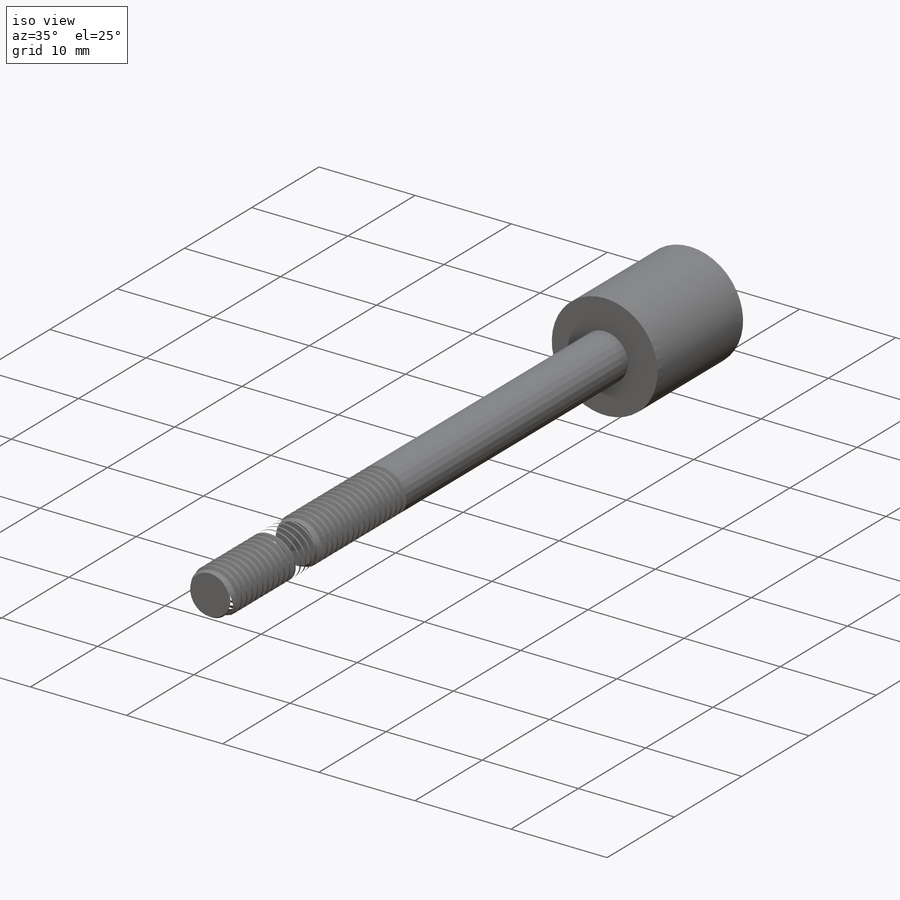
[diagram: iso view]
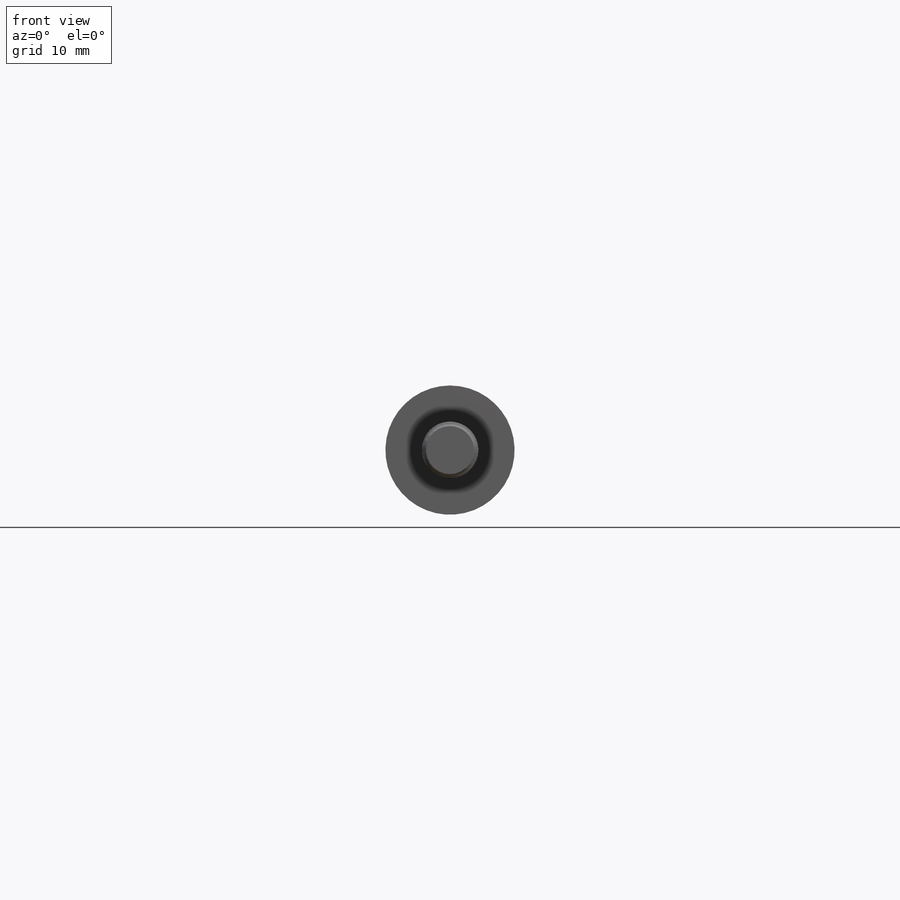
[diagram: front view]
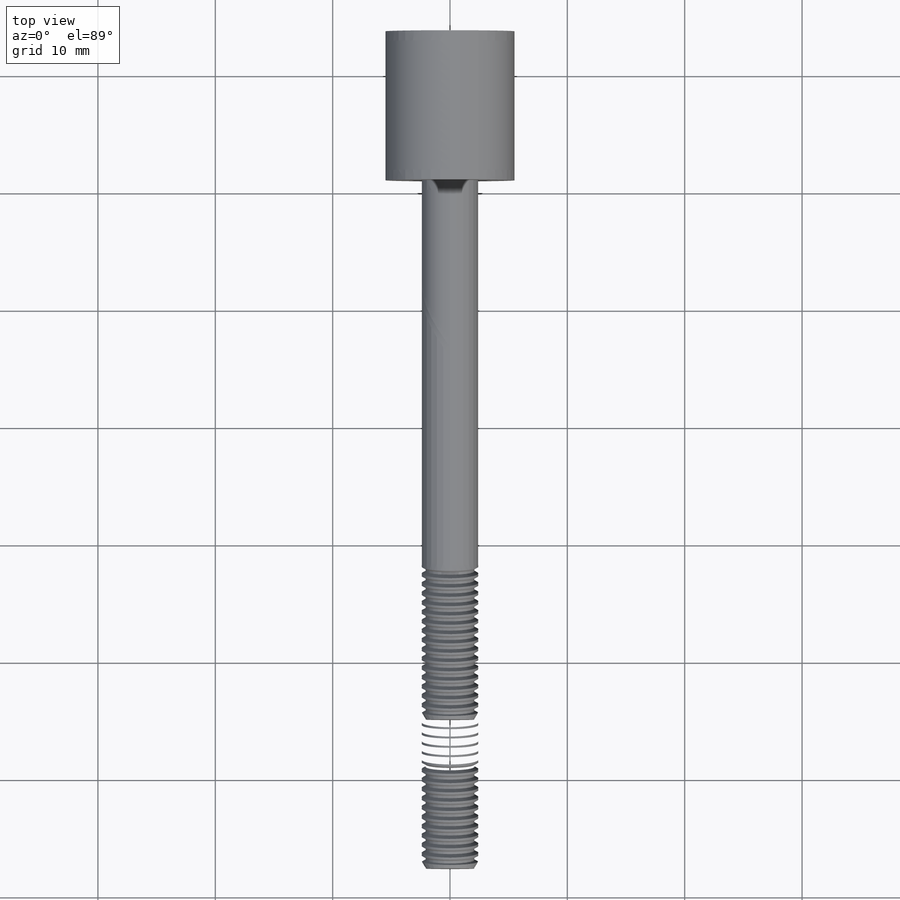
[diagram: top view]
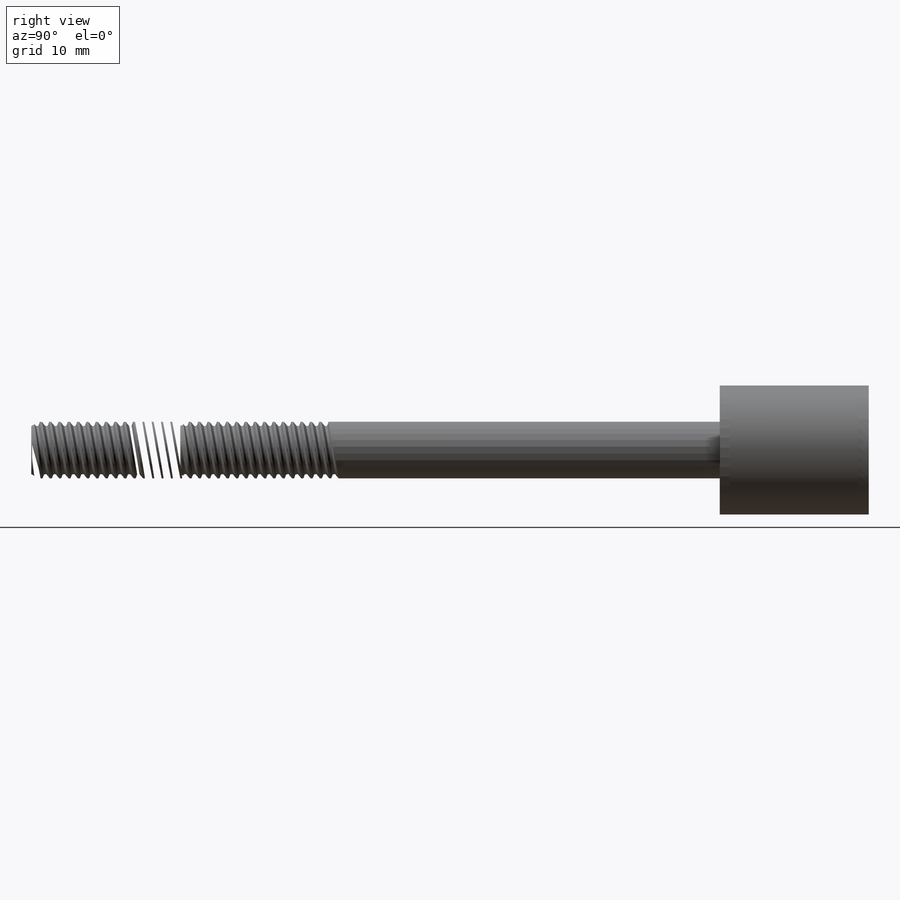
[diagram: right view]
SOLIDWORKS PART (.sldprt)
format: sldprt  version: not decoded by parser v0  size: 1,296,384 bytes
history: native  units: mm
features: sketch x15, cut_revolve x9, revolve x4, pattern_linear x3, plane x2, material x1, cut_extrude x1, chamfer x1, extrude x1 (+14 scaffold rows collapsed)
feature tree (51):
  scaffold x14  (default folders/planes/origin — collapsed)
  material  "Material <not specified>"
  sketch  "Sketch1"  dims[c1.J Flat=9.525mm c1.E OD=12.446mm c1.K Flat Depth=4.7625mm c1.RM Pilot=19.0246mm c1.G Pilot Length=16.002mm c2.RM Pilot=9.525mm c2.Shaft Dia=4.826mm c2.D Wrench Flats=9.525mm c2.C Flat Length=6.35mm c2.A Thread Length=12.7mm c2.Total Length=165.862mm c2.D1=0.0254mm c2.D2=90.0deg c3.Total Length=69.85mm c3.C Flat Length=6.35mm c3.D2=90.0deg c3.G Pilot Length=7.874mm c3.V Pilot Length=1.27mm c3.A Thread Length=12.7mm]
  revolve  "Revolve1"  Angle=360deg
  sketch  "Sketch2"
  cut_extrude  "Cut-Extrude1"  [1 undecoded]
  chamfer  "Chamfer1"  Distance=0.9525mm Angle=45deg
  sketch  "Sketch4"
  revolve  "Revolve2"  Angle=360deg
  sketch  "Sketch5"  dims[c1.D1=~0.132292mm c1.D2=~0.264583mm c1.Thread Pitch=~1.058333mm c1.D4=~1.839336mm c2.D4=60.0deg c2.D5=~1.058333mm]
  cut_revolve  "Cut-Revolve2"  Angle=360deg
  sketch  "Sketch6"  dims[c1.D1=~2.105576mm c2.D1=60.0deg]
  cut_revolve  "Cut-Revolve3"  Angle=360deg
  pattern_linear  "LPattern2"  Count1=2 Count2=7 Spacing1=1.058333mm Spacing2=1.058333mm
  sketch  "Sketch53"  dims[V Pilot Dia=2.286mm]
  revolve  "Revolve4"  Angle=360deg
  sketch  "Sketch7"  dims[c1.Bore Dia=19.05mm c1.Piston Dia=11.1125mm c1.Stroke=12.7mm c1.D4=3.175mm c1.D5=38.1mm c1.D1=0.0254mm c1.D2=25.4mm c1.D3=6.35mm c1.D6=11.1125mm c2.Stroke=50.8mm c2.D2=90.0deg c3.Stroke=12.7mm c3.D2=12.7mm c3.D3=9.525mm]
  cut_revolve  "Cut-Revolve5"  Angle=360deg
  sketch  "Sketch3"  dims[c1.D1=9.525mm c1.D2=3.175mm c1.D3=~2.257208mm c2.D3=45.0deg c2.D4=~1.397728mm c3.D3=1.27mm c3.D4=0.635mm c4.D4=45.0deg]
  cut_revolve  "Cut-Revolve1"  Angle=360deg
  sketch  "Sketch8"  dims[D1=0.0508mm D2=12.7mm]
  revolve  "Revolve3"  Angle=360deg
  sketch  "Sketch10"  dims[c1.D1=~0.099219mm c1.D2=~0.198437mm c1.Shaft Thread Pitch=~0.79375mm c1.D4=~0.79375mm c1.D5=~1.492597mm c2.D5=60.0deg]
  cut_revolve  "Cut-Revolve6"  Angle=360deg
  sketch  "Sketch11"  dims[c1.D1=~1.971795mm c2.D1=30.0deg]
  cut_revolve  "Cut-Revolve7"  Angle=360deg
  pattern_linear  "LPattern3"  Count1=2 Count2=16 Spacing1=0.79375mm Spacing2=0.79375mm
  pattern_linear  "LPattern4"  Count1=2 Count2=1 Spacing1=12.7mm Spacing2=1.5875mm
  plane  "Plane1"
  sketch  "Sketch13"  dims[c1.D1=~16.540476mm c2.D1=60.0deg c2.E0=4.826mm c2.Thread Pitch=~0.79375mm c2.D4=~0.177469mm c2.Thread Taper=3.58deg c2.D5=~0.078395mm c2.D2=~0.026194mm c2.D3=~0.030246mm c2.L2 Thread Engagement=5.08mm c2.L4 Thread Length=6.985mm c2.ID=102.2604mm c2.Pipe OD=114.3mm c2.Overall Length=304.8mm c3.D5=33.02mm c3.D6=6.0198mm]
  cut_revolve  "Cut-Revolve22"  Angle=360deg
  sketch  "Sketch52"
  cut_revolve  "Cut-Revolve23"  Angle=360deg
  plane  "Plane2"
  sketch  "Sketch54"  dims[Nut Hex=12.7mm]
  extrude  "Extrude1"  Depth=3.175mm Nut Height=3.175mm
  sketch  "Sketch55"  dims[c1.D1=~2.577315mm c2.D1=20.0deg c2.D2=12.7mm c2.D3=~0.535834mm c3.D3=45.0deg]
  cut_revolve  "Cut-Revolve24"  Angle=360deg
decode coverage: 30 of 34 modeling features carry decoded parameters
note: ~ marks probable driven/reference dimensions
note: 1 parameter value undecoded
note: suppression state not decoded; provenance and decode notes live in map.json
